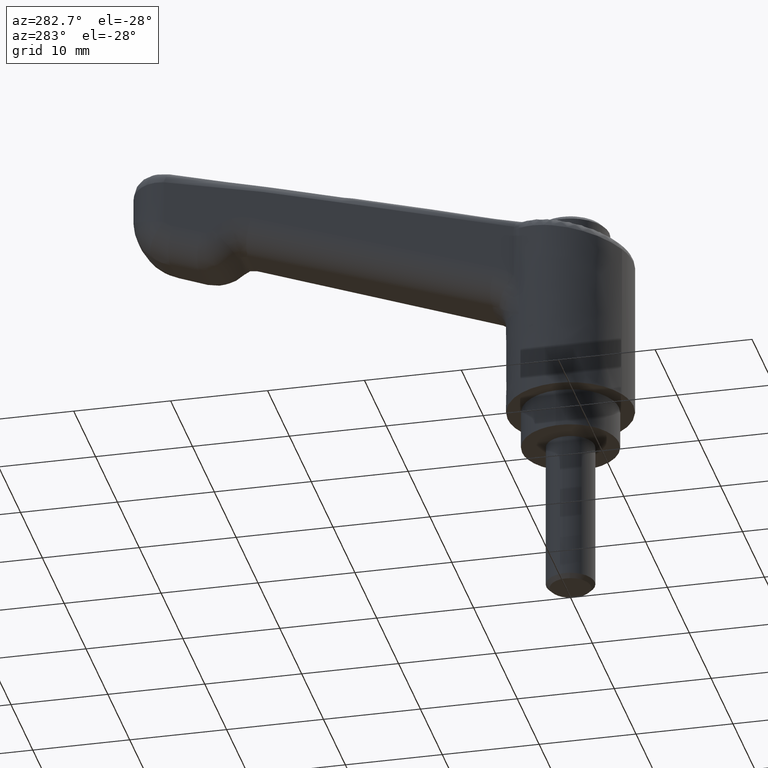
[diagram: clean part render]
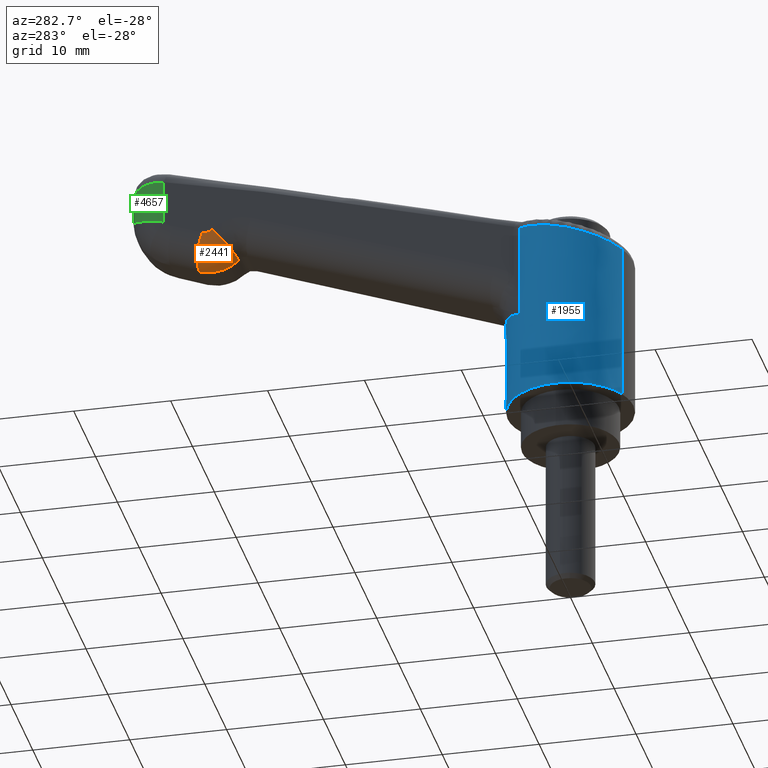
[diagram: same view with three faces highlighted in distinct colors, each labeled with its STEP entity id]
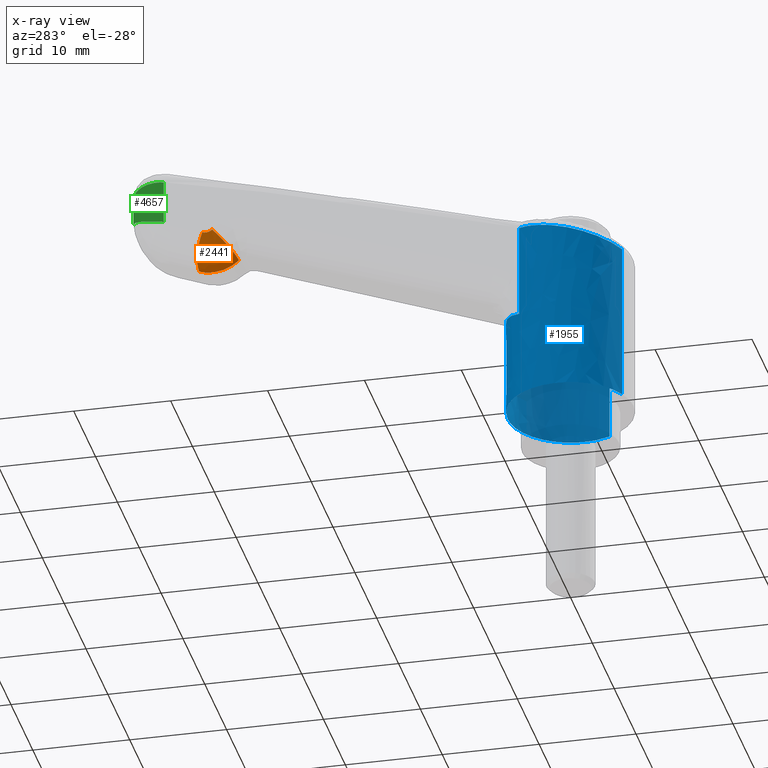
[diagram: x-ray of the same camera — body ghosted, the three highlighted faces saturated]
A machine part, auxiliary view with three faces highlighted in distinct colors.
The next image is the same camera in x-ray (body ghosted, the three faces saturated) — at least one of them is partly hidden behind the body in this view.
Their STEP definitions:

[orange] entity #2441 — the highlighted face is a freeform B-spline surface patch.
#2320=CARTESIAN_POINT('',(36.066367309400249,4.101913869265159,26.953569872643950));
#2321=VERTEX_POINT('',#2320);
#2322=CARTESIAN_POINT('',(33.975797355251053,1.102543428550206,24.743886523317801));
#2323=VERTEX_POINT('',#2322);
#2324=CARTESIAN_POINT('',(36.066367309400263,4.101913869265156,26.953569872643950));
#2325=CARTESIAN_POINT('',(35.217909043790705,4.119298742729114,26.029219557337107));
#2326=CARTESIAN_POINT('',(34.603826932075300,3.238266404923146,25.380149185554789));
#2327=CARTESIAN_POINT('',(33.989744820359896,2.357234067117183,24.731078813772466));
#2328=CARTESIAN_POINT('',(33.975797355250997,1.102543428550220,24.743886523317780));
#2336=(BOUNDED_CURVE()B_SPLINE_CURVE(2,(#2324,#2325,#2326,#2327,#2328),.UNSPECIFIED.,.F.,.U.)B_SPLINE_CURVE_WITH_KNOTS((3,2,3),(0.0,0.500000000000000,1.0),.UNSPECIFIED.)CURVE()GEOMETRIC_REPRESENTATION_ITEM()RATIONAL_B_SPLINE_CURVE((1.0,0.922548343260090,1.0,0.922548343260090,1.0))REPRESENTATION_ITEM(''));
#2337=EDGE_CURVE('',#2321,#2323,#2336,.T.);
#2369=CARTESIAN_POINT('',(36.066367309400277,4.101913869265252,26.953569872643989));
#2370=CARTESIAN_POINT('',(36.200497434383642,4.099165548758450,26.830400560673858));
#2371=CARTESIAN_POINT('',(36.368662339288498,4.095719857071129,26.745046592775800));
#2372=CARTESIAN_POINT('',(36.725594645069428,4.088406329437873,26.673851776383401));
#2373=CARTESIAN_POINT('',(36.913637535848387,4.084553338672745,26.688155423429350));
#2374=CARTESIAN_POINT('',(37.084758577035153,4.081047075879824,26.750438415669340));
#2375=CARTESIAN_POINT('',(34.009607603089840,4.144056787413729,24.712839173093709));
#2376=CARTESIAN_POINT('',(34.557490105186886,4.132830698450543,24.221080247757975));
#2377=CARTESIAN_POINT('',(35.240230383325517,4.118841379439389,23.887543452479306));
#2378=CARTESIAN_POINT('',(36.676140251999868,4.089419647830634,23.623590522480857));
#2379=CARTESIAN_POINT('',(37.426278749024867,4.074049342206984,23.693465966666228));
#2380=CARTESIAN_POINT('',(38.103252709150105,4.060178174805611,23.950975162930717));
#2381=CARTESIAN_POINT('',(33.975797355251039,1.102543428550316,24.743886523317808));
#2382=CARTESIAN_POINT('',(34.512318111864197,1.099795106728109,24.251209039482280));
#2383=CARTESIAN_POINT('',(35.184977474803873,1.096349416356192,23.909793403844500));
#2384=CARTESIAN_POINT('',(36.612706697927692,1.089035888722934,23.625014138276001));
#2385=CARTESIAN_POINT('',(37.364878049776728,1.085182899040336,23.682228649371481));
#2386=CARTESIAN_POINT('',(38.049362425790513,1.081676635164887,23.931360695419201));
#2394=(BOUNDED_SURFACE()B_SPLINE_SURFACE(3,2,((#2369,#2375,#2381),(#2370,#2376,#2382),(#2371,#2377,#2383),(#2372,#2378,#2384),(#2373,#2379,#2385),(#2374,#2380,#2386)),.UNSPECIFIED.,.F.,.F.,.U.)B_SPLINE_SURFACE_WITH_KNOTS((4,2,4),(3,3),(0.0,2.185264602136587,4.370529204273173),(0.0,5.019334087648436),.UNSPECIFIED.)GEOMETRIC_REPRESENTATION_ITEM()RATIONAL_B_SPLINE_SURFACE(((1.0,0.702190891303872,1.0),(1.0,0.703167065798387,1.0),(1.0,0.704393413884257,1.0),(1.0,0.706983789031513,1.0),(1.0,0.708345790978264,1.0),(1.0,0.709579632629245,1.0)))REPRESENTATION_ITEM('')SURFACE());
#2395=CARTESIAN_POINT('',(37.084758577035153,4.081047075879730,26.750438415669301));
#2396=VERTEX_POINT('',#2395);
#2397=CARTESIAN_POINT('',(38.049362425790513,1.081676635164896,23.931360695419151));
#2398=VERTEX_POINT('',#2397);
#2399=CARTESIAN_POINT('',(37.084758577035117,4.081047075879729,26.750438415669290));
#2400=CARTESIAN_POINT('',(38.103252709150048,4.060178174805501,23.950975162930682));
#2401=CARTESIAN_POINT('',(38.049362425790513,1.081676635164896,23.931360695419151));
#2409=(BOUNDED_CURVE()B_SPLINE_CURVE(2,(#2399,#2400,#2401),.UNSPECIFIED.,.F.,.U.)CURVE()GEOMETRIC_REPRESENTATION_ITEM()QUASI_UNIFORM_CURVE()RATIONAL_B_SPLINE_CURVE((1.0,0.709579632629246,1.0))REPRESENTATION_ITEM(''));
#2410=EDGE_CURVE('',#2396,#2398,#2409,.T.);
#2411=ORIENTED_EDGE('',*,*,#2410,.T.);
#2412=CARTESIAN_POINT('',(33.975797355251053,1.102543428550206,24.743886523317801));
#2413=CARTESIAN_POINT('',(35.765758895326002,1.093374369758358,23.100196625291499));
#2414=CARTESIAN_POINT('',(38.049362425790513,1.081676635164899,23.931360695419201));
#2422=(BOUNDED_CURVE()B_SPLINE_CURVE(2,(#2412,#2413,#2414),.UNSPECIFIED.,.F.,.U.)CURVE()GEOMETRIC_REPRESENTATION_ITEM()QUASI_UNIFORM_CURVE()RATIONAL_B_SPLINE_CURVE((1.0,0.854636887396105,1.0))REPRESENTATION_ITEM(''));
#2423=EDGE_CURVE('',#2323,#2398,#2422,.T.);
#2424=ORIENTED_EDGE('',*,*,#2423,.F.);
#2425=ORIENTED_EDGE('',*,*,#2337,.F.);
#2426=CARTESIAN_POINT('',(37.084758577035153,4.081047075879730,26.750438415669301));
#2427=CARTESIAN_POINT('',(36.513857694418938,4.092744810473302,26.542647398137458));
#2428=CARTESIAN_POINT('',(36.066367309400249,4.101913869265159,26.953569872643950));
#2436=(BOUNDED_CURVE()B_SPLINE_CURVE(2,(#2426,#2427,#2428),.UNSPECIFIED.,.F.,.U.)CURVE()GEOMETRIC_REPRESENTATION_ITEM()QUASI_UNIFORM_CURVE()RATIONAL_B_SPLINE_CURVE((1.0,0.854636887396126,1.0))REPRESENTATION_ITEM(''));
#2437=EDGE_CURVE('',#2396,#2321,#2436,.T.);
#2438=ORIENTED_EDGE('',*,*,#2437,.F.);
#2439=EDGE_LOOP('',(#2411,#2424,#2425,#2438));
#2440=FACE_OUTER_BOUND('',#2439,.T.);
#2441=ADVANCED_FACE('',(#2440),#2394,.T.);

[blue] entity #1955 — the highlighted face is a freeform B-spline surface patch.
#1812=CARTESIAN_POINT('',(-5.914748260697529,2.695506077265552,23.400783769491071));
#1813=CARTESIAN_POINT('',(-3.219242183431977,8.610254337963081,23.400783769491078));
#1814=CARTESIAN_POINT('',(2.695506077265552,5.914748260697529,23.400783769491071));
#1815=CARTESIAN_POINT('',(8.610254337963081,3.219242183431977,23.400783769491078));
#1816=CARTESIAN_POINT('',(5.914748260697529,-2.695506077265552,23.400783769491071));
#1817=CARTESIAN_POINT('',(3.219242183431977,-8.610254337963081,23.400783769491078));
#1818=CARTESIAN_POINT('',(-2.695506077265552,-5.914748260697529,23.400783769491071));
#1819=CARTESIAN_POINT('',(-5.914748260697529,2.695506077265552,3.514980405762724));
#1820=CARTESIAN_POINT('',(-3.219242183431977,8.610254337963081,3.514980405762724));
#1821=CARTESIAN_POINT('',(2.695506077265552,5.914748260697529,3.514980405762724));
#1822=CARTESIAN_POINT('',(8.610254337963081,3.219242183431977,3.514980405762724));
#1823=CARTESIAN_POINT('',(5.914748260697529,-2.695506077265552,3.514980405762724));
#1824=CARTESIAN_POINT('',(3.219242183431977,-8.610254337963081,3.514980405762724));
#1825=CARTESIAN_POINT('',(-2.695506077265552,-5.914748260697529,3.514980405762724));
#1833=(BOUNDED_SURFACE()B_SPLINE_SURFACE(2,1,((#1812,#1819),(#1813,#1820),(#1814,#1821),(#1815,#1822),(#1816,#1823),(#1817,#1824),(#1818,#1825)),.UNSPECIFIED.,.F.,.F.,.U.)B_SPLINE_SURFACE_WITH_KNOTS((3,2,2,3),(2,2),(0.0,10.769552621700470,21.539105243400940,32.308657865101402),(0.0,19.885803363728350),.UNSPECIFIED.)GEOMETRIC_REPRESENTATION_ITEM()RATIONAL_B_SPLINE_SURFACE(((1.0,1.0),(0.707106781186548,0.707106781186548),(1.0,1.0),(0.707106781186548,0.707106781186548),(1.0,1.0),(0.707106781186548,0.707106781186548),(1.0,1.0)))REPRESENTATION_ITEM('')SURFACE());
#1834=CARTESIAN_POINT('',(-5.914549030557717,2.695416163266641,20.523468583341909));
#1835=VERTEX_POINT('',#1834);
#1836=CARTESIAN_POINT('',(4.181284398144875,4.976631469360600,22.927593921454701));
#1837=VERTEX_POINT('',#1836);
#1838=CARTESIAN_POINT('',(-5.914549030557717,2.695416163266641,20.523468583341909));
#1839=CARTESIAN_POINT('',(-5.767468486490730,3.018050335340338,20.558268911247591));
#1840=CARTESIAN_POINT('',(-5.301181929138932,3.853651651242505,20.668784921353812));
#1841=CARTESIAN_POINT('',(-4.206732386147262,5.079375176715190,20.933537797244501));
#1842=CARTESIAN_POINT('',(-2.814015540329505,5.926542396084056,21.256796038891238));
#1843=CARTESIAN_POINT('',(-0.987577962027324,6.523199114144450,21.711269493583309));
#1844=CARTESIAN_POINT('',(0.518911407645906,6.562514857674298,22.054977967186652));
#1845=CARTESIAN_POINT('',(1.794250797316670,6.257449094870831,22.359250246099631));
#1846=CARTESIAN_POINT('',(2.343493194587236,6.072421571057179,22.489193506959111));
#1847=CARTESIAN_POINT('',(2.848927967781958,5.851381454310244,22.609174595253432));
#1848=CARTESIAN_POINT('',(3.310269165482875,5.602640639259406,22.719055273889769));
#1849=CARTESIAN_POINT('',(3.726997575588893,5.332975145164523,22.818719138621461));
#1850=CARTESIAN_POINT('',(4.011130282295424,5.119872779522569,22.886882516996131));
#1851=CARTESIAN_POINT('',(4.156138780718139,4.998073742364699,22.921579434600311));
#1852=CARTESIAN_POINT('',(4.181284398144875,4.976631469360600,22.927593921454701));
#1853=B_SPLINE_CURVE_WITH_KNOTS('',3,(#1838,#1839,#1840,#1841,#1842,#1843,#1844,#1845,#1846,#1847,#1848,#1849,#1850,#1851,#1852),.UNSPECIFIED.,.F.,.U.,(4,1,1,1,1,1,1,1,1,1,1,1,4),(0.590929793913175,0.625689573868113,0.684593177289269,0.752063985464612,0.785550837866162,0.877717810244562,0.898032705466529,0.917397459694434,0.935812799731019,0.953279587977761,0.969798852578575,0.985371826641243,0.988662854138937),.UNSPECIFIED.);
#1854=EDGE_CURVE('',#1835,#1837,#1853,.T.);
#1855=ORIENTED_EDGE('',*,*,#1854,.T.);
#1856=CARTESIAN_POINT('',(4.181284398144875,4.976631469360600,13.157700573101801));
#1857=VERTEX_POINT('',#1856);
#1858=CARTESIAN_POINT('',(4.181284398144875,4.976631469360600,22.927593921454701));
#1859=CARTESIAN_POINT('',(4.181284398144875,4.976631469360600,13.157700573101801));
#1860=QUASI_UNIFORM_CURVE('',1,(#1858,#1859),.UNSPECIFIED.,.F.,.U.);
#1861=EDGE_CURVE('',#1837,#1857,#1860,.T.);
#1862=ORIENTED_EDGE('',*,*,#1861,.T.);
#1863=CARTESIAN_POINT('',(4.181284398144875,-4.976631469360600,13.157700573101801));
#1864=VERTEX_POINT('',#1863);
#1865=CARTESIAN_POINT('',(4.181284398144868,4.976631469360603,13.157700573101810));
#1866=CARTESIAN_POINT('',(6.499999999999996,3.028484529113573,14.224243801016479));
#1867=CARTESIAN_POINT('',(6.499999999999996,7.959941E-016,14.224243801016479));
#1868=CARTESIAN_POINT('',(6.499999999999996,-3.028484529113571,14.224243801016479));
#1869=CARTESIAN_POINT('',(4.181284398144872,-4.976631469360600,13.157700573101820));
#1877=(BOUNDED_CURVE()B_SPLINE_CURVE(2,(#1865,#1866,#1867,#1868,#1869),.UNSPECIFIED.,.F.,.U.)B_SPLINE_CURVE_WITH_KNOTS((3,2,3),(0.0,0.500000000000000,1.0),.UNSPECIFIED.)CURVE()GEOMETRIC_REPRESENTATION_ITEM()RATIONAL_B_SPLINE_CURVE((1.0,0.906442089377892,1.0,0.906442089377892,1.0))REPRESENTATION_ITEM(''));
#1878=EDGE_CURVE('',#1857,#1864,#1877,.T.);
#1879=ORIENTED_EDGE('',*,*,#1878,.T.);
#1880=CARTESIAN_POINT('',(4.181284398144875,-4.976631469360600,22.927593525127300));
#1881=VERTEX_POINT('',#1880);
#1882=CARTESIAN_POINT('',(4.181284398144875,-4.976631469360600,13.157700573101801));
#1883=CARTESIAN_POINT('',(4.181284398144875,-4.976631469360600,22.927593525127300));
#1884=QUASI_UNIFORM_CURVE('',1,(#1882,#1883),.UNSPECIFIED.,.F.,.U.);
#1885=EDGE_CURVE('',#1864,#1881,#1884,.T.);
#1886=ORIENTED_EDGE('',*,*,#1885,.T.);
#1887=CARTESIAN_POINT('',(-2.695512989522391,-5.914765076864004,21.289376043468650));
#1888=VERTEX_POINT('',#1887);
#1889=CARTESIAN_POINT('',(4.181284398144875,-4.976631469360600,22.927593525127300));
#1890=CARTESIAN_POINT('',(4.090702165323511,-5.053378183210261,22.905918210867490));
#1891=CARTESIAN_POINT('',(3.899519879408040,-5.204324889178523,22.860066824728811));
#1892=CARTESIAN_POINT('',(3.594591241408540,-5.420201657547366,22.787020850012372));
#1893=CARTESIAN_POINT('',(3.262692340483001,-5.626525203530024,22.707703083930699));
#1894=CARTESIAN_POINT('',(2.904133538237865,-5.820130716685480,22.622291348183779));
#1895=CARTESIAN_POINT('',(2.518726233729398,-5.997385156107481,22.530764684001969));
#1896=CARTESIAN_POINT('',(2.106812028608926,-6.154602995259235,22.433104033876258));
#1897=CARTESIAN_POINT('',(1.668917019156096,-6.287865513283735,22.329410990867508));
#1898=CARTESIAN_POINT('',(0.704775852820398,-6.507636199962740,22.099638547656689));
#1899=CARTESIAN_POINT('',(-0.573018569196878,-6.546654560877359,21.802535929933271));
#1900=CARTESIAN_POINT('',(-1.801453945017824,-6.266555559959366,21.510996003727591));
#1901=CARTESIAN_POINT('',(-2.411559707857272,-6.039669515534760,21.357715511929360));
#1902=CARTESIAN_POINT('',(-2.625726142337787,-5.946577672371205,21.306056217161061));
#1903=CARTESIAN_POINT('',(-2.695512989522391,-5.914765076864004,21.289376043468650));
#1904=B_SPLINE_CURVE_WITH_KNOTS('',3,(#1889,#1890,#1891,#1892,#1893,#1894,#1895,#1896,#1897,#1898,#1899,#1900,#1901,#1902,#1903),.UNSPECIFIED.,.F.,.U.,(4,1,1,1,1,1,1,1,1,1,1,1,4),(0.011339002814821,0.023162408093432,0.035602075254132,0.048614959416363,0.062201629669727,0.076362582625634,0.091098253527881,0.106409025298450,0.122295235960681,0.190526883254455,0.232580987687207,0.248311673399157,0.255996156726028),.UNSPECIFIED.);
#1905=EDGE_CURVE('',#1881,#1888,#1904,.T.);
#1906=ORIENTED_EDGE('',*,*,#1905,.T.);
#1907=CARTESIAN_POINT('',(-2.695500760972466,-5.914750683466100,4.0));
#1908=VERTEX_POINT('',#1907);
#1909=CARTESIAN_POINT('',(-2.695512989522391,-5.914765076864004,21.289376043468650));
#1910=CARTESIAN_POINT('',(-2.695500760972466,-5.914750683466100,4.0));
#1911=QUASI_UNIFORM_CURVE('',1,(#1909,#1910),.UNSPECIFIED.,.F.,.U.);
#1912=EDGE_CURVE('',#1888,#1908,#1911,.T.);
#1913=ORIENTED_EDGE('',*,*,#1912,.T.);
#1914=CARTESIAN_POINT('',(6.500000000000000,0.0,4.0));
#1915=VERTEX_POINT('',#1914);
#1916=CARTESIAN_POINT('',(-2.695500760972466,-5.914750683466100,3.999999999999999));
#1917=CARTESIAN_POINT('',(-1.411285284178826,-6.500000000000000,4.0));
#1918=CARTESIAN_POINT('',(0.0,-6.500000000000000,4.0));
#1919=CARTESIAN_POINT('',(6.500000000000000,-6.500000000000000,4.0));
#1920=CARTESIAN_POINT('',(6.500000000000000,0.0,4.0));
#1928=(BOUNDED_CURVE()B_SPLINE_CURVE(2,(#1916,#1917,#1918,#1919,#1920),.UNSPECIFIED.,.F.,.U.)B_SPLINE_CURVE_WITH_KNOTS((3,2,3),(0.179570256140653,0.250000000000000,0.500000000000000),.UNSPECIFIED.)CURVE()GEOMETRIC_REPRESENTATION_ITEM()RATIONAL_B_SPLINE_CURVE((0.881464126001978,0.917486422483315,1.0,0.707106781186547,1.0))REPRESENTATION_ITEM(''));
#1929=EDGE_CURVE('',#1908,#1915,#1928,.T.);
#1930=ORIENTED_EDGE('',*,*,#1929,.T.);
#1931=CARTESIAN_POINT('',(-5.914752124722547,2.695497598404286,4.000000000000002));
#1932=VERTEX_POINT('',#1931);
#1933=CARTESIAN_POINT('',(6.500000000000000,0.0,4.0));
#1934=CARTESIAN_POINT('',(6.500000000000000,6.500000000000000,4.0));
#1935=CARTESIAN_POINT('',(0.0,6.500000000000000,4.0));
#1936=CARTESIAN_POINT('',(-4.180947077556312,6.500000000000000,4.0));
#1937=CARTESIAN_POINT('',(-5.914752124722547,2.695497598404285,4.000000000000002));
#1945=(BOUNDED_CURVE()B_SPLINE_CURVE(2,(#1933,#1934,#1935,#1936,#1937),.UNSPECIFIED.,.F.,.U.)B_SPLINE_CURVE_WITH_KNOTS((3,2,3),(0.500000000000000,0.750000000000000,0.929570339457503),.UNSPECIFIED.)CURVE()GEOMETRIC_REPRESENTATION_ITEM()RATIONAL_B_SPLINE_CURVE((1.0,0.707106781186547,1.0,0.789620261091471,0.881464211229225))REPRESENTATION_ITEM(''));
#1946=EDGE_CURVE('',#1915,#1932,#1945,.T.);
#1947=ORIENTED_EDGE('',*,*,#1946,.T.);
#1948=CARTESIAN_POINT('',(-5.914549030557717,2.695416163266641,20.523468583341909));
#1949=CARTESIAN_POINT('',(-5.914752124722547,2.695497598404286,4.000000000000002));
#1950=QUASI_UNIFORM_CURVE('',1,(#1948,#1949),.UNSPECIFIED.,.F.,.U.);
#1951=EDGE_CURVE('',#1835,#1932,#1950,.T.);
#1952=ORIENTED_EDGE('',*,*,#1951,.F.);
#1953=EDGE_LOOP('',(#1855,#1862,#1879,#1886,#1906,#1913,#1930,#1947,#1952));
#1954=FACE_OUTER_BOUND('',#1953,.T.);
#1955=ADVANCED_FACE('',(#1954),#1833,.T.);

[green] entity #4657 — the highlighted face is a freeform B-spline surface patch.
#2535=CARTESIAN_POINT('',(41.081942628878487,3.999144946134395,28.444855264174748));
#2536=VERTEX_POINT('',#2535);
#2632=CARTESIAN_POINT('',(45.0,-0.000015641485440,30.662410843262951));
#2633=VERTEX_POINT('',#2632);
#2634=CARTESIAN_POINT('',(45.0,-0.000015641485440,30.662410843262951));
#2635=CARTESIAN_POINT('',(44.999999944226182,0.031270363513726,30.648863676924631));
#2636=CARTESIAN_POINT('',(44.999625191813649,0.063235898334178,30.635022291434819));
#2637=CARTESIAN_POINT('',(44.998121765757482,0.126570559447724,30.607593884920650));
#2638=CARTESIAN_POINT('',(44.994739310967070,0.221487009446116,30.566482515123280));
#2639=CARTESIAN_POINT('',(44.987987991729263,0.316130902287121,30.525454482206840));
#2640=CARTESIAN_POINT('',(44.970002204119112,0.505039079579945,30.443470395197799));
#2641=CARTESIAN_POINT('',(44.952011920446822,0.630631082778202,30.388841235473489));
#2642=CARTESIAN_POINT('',(44.904059008516072,0.880003725738597,30.279870821649791));
#2643=CARTESIAN_POINT('',(44.874214354359211,1.003256512487470,30.225760667869281));
#2644=CARTESIAN_POINT('',(44.820675478685231,1.185923343119937,30.144998604780259));
#2645=CARTESIAN_POINT('',(44.801364992810328,1.246443018129408,30.118145245422010));
#2646=CARTESIAN_POINT('',(44.759793840894112,1.366726586173039,30.064547555641980));
#2647=CARTESIAN_POINT('',(44.737512017772588,1.426528994151118,30.037785460575751));
#2648=CARTESIAN_POINT('',(44.619464600570190,1.721645473847278,29.905065341150308));
#2649=CARTESIAN_POINT('',(44.503453970181802,1.946912273030040,29.801670208677340));
#2650=CARTESIAN_POINT('',(44.297263637606541,2.268071049019407,29.649449500367862));
#2651=CARTESIAN_POINT('',(44.223139444490528,2.372317655505154,29.599191626088022));
#2652=CARTESIAN_POINT('',(44.063726305804472,2.574896832439544,29.499447960423169));
#2653=CARTESIAN_POINT('',(43.979003091576381,2.672491680030416,29.450322935054480));
#2654=CARTESIAN_POINT('',(43.799878850350147,2.859605609482824,29.353604732789879));
#2655=CARTESIAN_POINT('',(43.705999978641287,2.948566244760232,29.306297566053580));
#2656=CARTESIAN_POINT('',(43.510700966357739,3.116545378644477,29.213958579653671));
#2657=CARTESIAN_POINT('',(43.409144402823351,3.195707067431789,29.168853554509369));
#2658=CARTESIAN_POINT('',(43.198250528858033,3.344280440373045,29.080534695910249));
#2659=CARTESIAN_POINT('',(43.088913608011808,3.413692982207298,29.037321391366859));
#2660=CARTESIAN_POINT('',(42.918947801124837,3.510236602551565,28.973770906799150));
#2661=CARTESIAN_POINT('',(42.861297535462043,3.541153199534542,28.952799238866671));
#2662=CARTESIAN_POINT('',(42.743965484566672,3.600385798941233,28.911257011702851));
#2663=CARTESIAN_POINT('',(42.684210307347229,3.628729592078583,28.890663284032499));
#2664=CARTESIAN_POINT('',(42.502998506691632,3.709224023527342,28.829841007762589));
#2665=CARTESIAN_POINT('',(42.378935689239647,3.757106713284005,28.790356465185049));
#2666=CARTESIAN_POINT('',(42.128105289536627,3.839881812214760,28.714407864174490));
#2667=CARTESIAN_POINT('',(42.001070543470327,3.874931699128879,28.677843381937969));
#2668=CARTESIAN_POINT('',(41.615248672236561,3.961162122712469,28.571923086602730));
#2669=CARTESIAN_POINT('',(41.351786986550842,3.993615612637141,28.506320143834628));
#2670=CARTESIAN_POINT('',(41.081942628878487,3.999144946134395,28.444855264174748));
#2671=B_SPLINE_CURVE_WITH_KNOTS('',3,(#2634,#2635,#2636,#2637,#2638,#2639,#2640,#2641,#2642,#2643,#2644,#2645,#2646,#2647,#2648,#2649,#2650,#2651,#2652,#2653,#2654,#2655,#2656,#2657,#2658,#2659,#2660,#2661,#2662,#2663,#2664,#2665,#2666,#2667,#2668,#2669,#2670),.UNSPECIFIED.,.F.,.U.,(4,2,1,2,2,2,2,2,2,2,2,2,2,2,2,2,2,2,4),(0.0,0.015623837191080,0.031248837191079,0.062498837191079,0.124998837191079,0.187498837191078,0.218748837191078,0.249998837191078,0.374998837191080,0.437498837191080,0.499998837191081,0.562498837191082,0.624998837191082,0.687498837191083,0.718748837191083,0.749998837191083,0.812498837191083,0.874998837191083,0.999998837191080),.UNSPECIFIED.);
#2672=EDGE_CURVE('',#2633,#2536,#2671,.T.);
#4087=CARTESIAN_POINT('',(45.0,-0.000015641485440,33.000003780693703));
#4088=VERTEX_POINT('',#4087);
#4102=CARTESIAN_POINT('',(41.081942628878487,3.999144946134395,32.970756681665392));
#4103=VERTEX_POINT('',#4102);
#4104=CARTESIAN_POINT('',(41.081942628878487,3.999144946134395,32.970756681665392));
#4105=CARTESIAN_POINT('',(41.164203855452207,3.995992851749290,32.984655344231399));
#4106=CARTESIAN_POINT('',(41.330329775980310,3.989627221146135,33.012723587425249));
#4107=CARTESIAN_POINT('',(41.581728036619673,3.960021267220378,33.047958540493141));
#4108=CARTESIAN_POINT('',(41.836325152022127,3.914541547823718,33.078729646879452));
#4109=CARTESIAN_POINT('',(42.092931649155702,3.850851637300519,33.104475412364053));
#4110=CARTESIAN_POINT('',(42.350134843764422,3.768536186689408,33.125385936110163));
#4111=CARTESIAN_POINT('',(42.606432692499162,3.666756752090917,33.141275330609133));
#4112=CARTESIAN_POINT('',(42.987849811246733,3.483644238912743,33.158466288653877));
#4113=CARTESIAN_POINT('',(43.562688273557832,3.114009911258649,33.157878921903233));
#4114=CARTESIAN_POINT('',(44.131830103060160,2.536949188803796,33.146143328880910));
#4115=CARTESIAN_POINT('',(44.579281836269288,1.834135787861193,33.112793957106817));
#4116=CARTESIAN_POINT('',(44.822670029293612,1.236627673038210,33.066571774754159));
#4117=CARTESIAN_POINT('',(44.946282666486198,0.696306833667371,33.027256562035362));
#4118=CARTESIAN_POINT('',(44.993324885101529,0.317235710012089,33.005500051009427));
#4119=CARTESIAN_POINT('',(44.998000947649253,0.094994267653096,33.001649794609818));
#4120=CARTESIAN_POINT('',(45.0,-0.000015641485440,33.000003780693703));
#4121=B_SPLINE_CURVE_WITH_KNOTS('',3,(#4104,#4105,#4106,#4107,#4108,#4109,#4110,#4111,#4112,#4113,#4114,#4115,#4116,#4117,#4118,#4119,#4120),.UNSPECIFIED.,.F.,.U.,(4,1,1,1,1,1,1,1,1,1,1,1,1,1,4),(0.0,0.040324118676637,0.081434250541401,0.123350469669858,0.166091712598150,0.209675838715303,0.254119689516424,0.299439146249360,0.414111148402849,0.582549392941568,0.686070816714058,0.815573134233637,0.892629747616208,0.954098399403441,1.000000000000000),.UNSPECIFIED.);
#4122=EDGE_CURVE('',#4103,#4088,#4121,.T.);
#4624=CARTESIAN_POINT('',(45.0,-0.000015641485440,30.662410843262951));
#4625=CARTESIAN_POINT('',(45.0,-0.000015641485440,33.000003780693703));
#4626=QUASI_UNIFORM_CURVE('',1,(#4624,#4625),.UNSPECIFIED.,.F.,.U.);
#4627=EDGE_CURVE('',#2633,#4088,#4626,.T.);
#4633=CARTESIAN_POINT('',(41.047040691922717,3.999707745613150,28.327048267108768));
#4634=CARTESIAN_POINT('',(41.047040691922717,3.999707745613150,33.277887318806492));
#4635=CARTESIAN_POINT('',(45.188875506040404,3.950995683145489,28.327048267108776));
#4636=CARTESIAN_POINT('',(45.188875506040404,3.950995683145489,33.277887318806485));
#4637=CARTESIAN_POINT('',(44.995645167207442,-0.186616010648606,28.327048267108768));
#4638=CARTESIAN_POINT('',(44.995645167207442,-0.186616010648606,33.277887318806492));
#4646=(BOUNDED_SURFACE()B_SPLINE_SURFACE(1,2,((#4633,#4635,#4637),(#4634,#4636,#4638)),.UNSPECIFIED.,.F.,.F.,.U.)B_SPLINE_SURFACE_WITH_KNOTS((2,2),(3,3),(0.0,4.950839051697720),(0.0,6.791597059353683),.UNSPECIFIED.)GEOMETRIC_REPRESENTATION_ITEM()RATIONAL_B_SPLINE_SURFACE(((1.0,0.694658370458997,1.0),(1.0,0.694658370458997,1.0)))REPRESENTATION_ITEM('')SURFACE());
#4647=ORIENTED_EDGE('',*,*,#4627,.F.);
#4648=ORIENTED_EDGE('',*,*,#2672,.T.);
#4649=CARTESIAN_POINT('',(41.081942628878487,3.999144946134395,32.970756681665392));
#4650=CARTESIAN_POINT('',(41.081942628878487,3.999144946134395,28.444855264174748));
#4651=QUASI_UNIFORM_CURVE('',1,(#4649,#4650),.UNSPECIFIED.,.F.,.U.);
#4652=EDGE_CURVE('',#4103,#2536,#4651,.T.);
#4653=ORIENTED_EDGE('',*,*,#4652,.F.);
#4654=ORIENTED_EDGE('',*,*,#4122,.T.);
#4655=EDGE_LOOP('',(#4647,#4648,#4653,#4654));
#4656=FACE_OUTER_BOUND('',#4655,.T.);
#4657=ADVANCED_FACE('',(#4656),#4646,.T.);